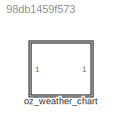
MODEL slx_98db1459f573
KIND model
CONFIG AbsTol = auto
CONFIG EnableMultiTasking = off
CONFIG FixedStep = auto
CONFIG MaxStep = auto
CONFIG MinStep = auto
CONFIG RelTol = 1e-3
CONFIG SampleTimeConstraint = Unconstrained
CONFIG SolverName = VariableStepAuto
CONFIG StartTime = 0.0
CONFIG StopTime = 10000
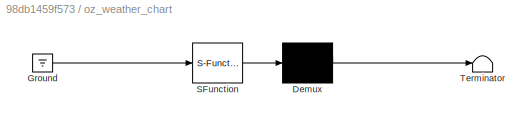
BLOCK [SubSystem] oz_weather_chart
  ErrorFcn = Stateflow.Translate.translate
  PermitHierarchicalResolution = ExplicitOnly
  SFBlockType = Chart
  TreatAsAtomicUnit = on
BLOCK [Demux] oz_weather_chart/ Demux 
  Outputs = 1
BLOCK [Ground] oz_weather_chart/ Ground 
BLOCK [S-Function] oz_weather_chart/ SFunction 
  EnableBusSupport = on
  FunctionName = sf_sfun
  PortCounts = [1 1]
  SFcnIsStateOwnerBlock = off
  SFunctionDeploymentMode = off
  Tag = Stateflow S-Function 3
BLOCK [Terminator] oz_weather_chart/ Terminator 
CHART oz_weather_chart states=3 transitions=14
  STATE_LABEL 'Sunny/\nentry:n_sunny = n_sunny + 1;'
  STATE_LABEL 'Rainy/\nentry:n_rainy = n_rainy + 1;'
  STATE_LABEL 'Snowy/\nentry:n_snowy = n_snowy + 1;'
CHART  states=0 transitions=0
